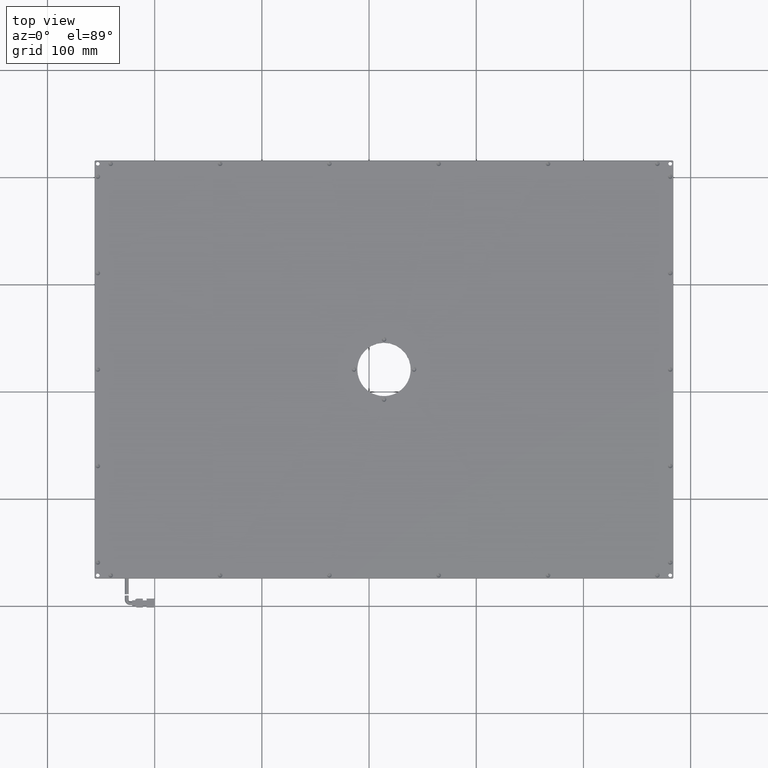
[diagram: clean part render]
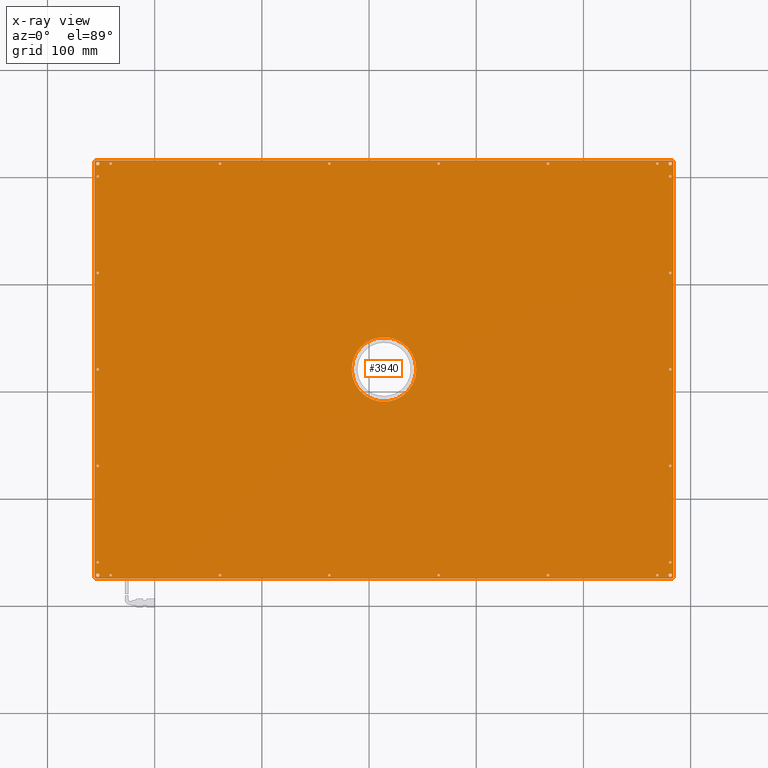
[diagram: x-ray — body ghosted, one internal face saturated and labeled with its STEP entity id]
A machine part, top view, then the same camera in x-ray: the body is ghosted and one INTERNAL B-rep face — a face not visible from any outside direction — is saturated and labeled: STEP entity #3940.
In plain terms, the highlighted planar face has unit normal (0, 0, -1).
Its self-contained STEP definition (entity closure, byte-faithful):
#18 = AXIS2_PLACEMENT_3D ( 'NONE', #21942, #38317, #15595 ) ;
#290 = VERTEX_POINT ( 'NONE', #40633 ) ;
#540 = CARTESIAN_POINT ( 'NONE',  ( 63.74095595126522100, -171.2877225866916100, 10.00000000001909900 ) ) ;
#588 = EDGE_CURVE ( 'NONE', #32391, #5445, #40836, .T. ) ;
#610 = CARTESIAN_POINT ( 'NONE',  ( -251.8590440487348300, -69.28772258669162900, 10.00000000001909900 ) ) ;
#620 = DIRECTION ( 'NONE',  ( 1.000000000000000000, 0.0000000000000000000, 0.0000000000000000000 ) ) ;
#628 = VERTEX_POINT ( 'NONE', #6270 ) ;
#805 = DIRECTION ( 'NONE',  ( 0.7071067811865279200, -0.7071067811865672200, 0.0000000000000000000 ) ) ;
#817 = VERTEX_POINT ( 'NONE', #4421 ) ;
#839 = VERTEX_POINT ( 'NONE', #24234 ) ;
#879 = ORIENTED_EDGE ( 'NONE', *, *, #20437, .T. ) ;
#1081 = VECTOR ( 'NONE', #9727, 1000.000000000000000 ) ;
#1099 = ORIENTED_EDGE ( 'NONE', *, *, #18707, .T. ) ;
#1100 = CARTESIAN_POINT ( 'NONE',  ( 280.9409559512652100, 110.7122774133084700, 10.00000000001909900 ) ) ;
#1103 = DIRECTION ( 'NONE',  ( 1.000000000000000000, 0.0000000000000000000, 0.0000000000000000000 ) ) ;
#1142 = VERTEX_POINT ( 'NONE', #9382 ) ;
#1165 = CARTESIAN_POINT ( 'NONE',  ( -255.0590440487348200, -174.2877225866916100, 10.00000000001909800 ) ) ;
#1214 = CARTESIAN_POINT ( 'NONE',  ( -37.05904404873480500, -171.2877225866916100, 10.00000000001909900 ) ) ;
#1239 = DIRECTION ( 'NONE',  ( -0.0000000000000000000, -0.0000000000000000000, 1.000000000000000000 ) ) ;
#1266 = DIRECTION ( 'NONE',  ( -0.0000000000000000000, -0.0000000000000000000, 1.000000000000000000 ) ) ;
#1319 = FACE_BOUND ( 'NONE', #26994, .T. ) ;
#1321 = EDGE_LOOP ( 'NONE', ( #26581, #9496 ) ) ;
#1345 = CARTESIAN_POINT ( 'NONE',  ( -241.0590440487347900, 212.7122774133083900, 10.00000000001909900 ) ) ;
#1489 = CARTESIAN_POINT ( 'NONE',  ( -16.15904404873480600, 20.71227741330838900, 10.00000000001909900 ) ) ;
#1541 = EDGE_CURVE ( 'NONE', #17600, #12301, #33846, .T. ) ;
#1566 = DIRECTION ( 'NONE',  ( -0.0000000000000000000, -0.0000000000000000000, 1.000000000000000000 ) ) ;
#1600 = EDGE_CURVE ( 'NONE', #22419, #4388, #12822, .T. ) ;
#1664 = DIRECTION ( 'NONE',  ( -0.0000000000000000000, -0.0000000000000000000, 1.000000000000000000 ) ) ;
#1872 = DIRECTION ( 'NONE',  ( 1.000000000000000000, 0.0000000000000000000, 0.0000000000000000000 ) ) ;
#1939 = ORIENTED_EDGE ( 'NONE', *, *, #39043, .T. ) ;
#1950 = ORIENTED_EDGE ( 'NONE', *, *, #41170, .T. ) ;
#1982 = EDGE_CURVE ( 'NONE', #36720, #7634, #12206, .T. ) ;
#1989 = VERTEX_POINT ( 'NONE', #35564 ) ;
#2104 = EDGE_CURVE ( 'NONE', #7270, #19749, #7040, .T. ) ;
#2121 = ORIENTED_EDGE ( 'NONE', *, *, #13042, .T. ) ;
#2285 = CARTESIAN_POINT ( 'NONE',  ( -253.0590440487347900, 200.7122774133083900, 10.00000000001909900 ) ) ;
#2662 = ORIENTED_EDGE ( 'NONE', *, *, #28942, .T. ) ;
#2678 = DIRECTION ( 'NONE',  ( 1.000000000000000000, 0.0000000000000000000, 0.0000000000000000000 ) ) ;
#2688 = DIRECTION ( 'NONE',  ( 1.000000000000000000, 0.0000000000000000000, 0.0000000000000000000 ) ) ;
#2746 = VERTEX_POINT ( 'NONE', #3485 ) ;
#2875 = ORIENTED_EDGE ( 'NONE', *, *, #35378, .T. ) ;
#3003 = CARTESIAN_POINT ( 'NONE',  ( -256.0590440487347900, 215.7122774133083900, 10.00000000001909900 ) ) ;
#3222 = CARTESIAN_POINT ( 'NONE',  ( 268.9409559512652100, -171.2877225866916100, 10.00000000001909900 ) ) ;
#3432 = AXIS2_PLACEMENT_3D ( 'NONE', #38050, #11886, #21952 ) ;
#3485 = CARTESIAN_POINT ( 'NONE',  ( 279.7409559512652200, 20.71227741330838900, 10.00000000001909900 ) ) ;
#3578 = ORIENTED_EDGE ( 'NONE', *, *, #35558, .T. ) ;
#3797 = CARTESIAN_POINT ( 'NONE',  ( 270.1409559512652000, -171.2877225866916100, 10.00000000001909900 ) ) ;
#3846 = FACE_BOUND ( 'NONE', #7346, .T. ) ;
#3871 = EDGE_LOOP ( 'NONE', ( #28871, #12886 ) ) ;
#3886 = VERTEX_POINT ( 'NONE', #35499 ) ;
#3940 = ADVANCED_FACE ( 'NONE', ( #13577, #25442, #33089, #3846, #24411, #34131, #32105, #31068, #23366, #5887, #38793, #37762, #23322, #5843, #13533, #25394, #16624, #4829, #18696, #7417, #1319, #29504, #23880, #12024, #25918, #14596, #33579, #37206 ), #9102, .T. ) ;
#4041 = DIRECTION ( 'NONE',  ( 1.000000000000000000, 0.0000000000000000000, 0.0000000000000000000 ) ) ;
#4061 = CARTESIAN_POINT ( 'NONE',  ( 279.7409559512652200, -69.28772258669162900, 10.00000000001909900 ) ) ;
#4289 = CIRCLE ( 'NONE', #15335, 1.199999999999978900 ) ;
#4335 = DIRECTION ( 'NONE',  ( 1.000000000000000000, 0.0000000000000000000, 0.0000000000000000000 ) ) ;
#4356 = EDGE_LOOP ( 'NONE', ( #36641, #1099 ) ) ;
#4365 = EDGE_LOOP ( 'NONE', ( #10145, #12637 ) ) ;
#4388 = VERTEX_POINT ( 'NONE', #12049 ) ;
#4421 = CARTESIAN_POINT ( 'NONE',  ( 168.1409559512651700, -171.2877225866916100, 10.00000000001909900 ) ) ;
#4458 = VERTEX_POINT ( 'NONE', #42524 ) ;
#4505 = CIRCLE ( 'NONE', #30262, 1.200000000000006600 ) ;
#4640 = CARTESIAN_POINT ( 'NONE',  ( -253.0590440487347900, 200.7122774133083900, 10.00000000001909900 ) ) ;
#4751 = CIRCLE ( 'NONE', #15708, 1.199999999999978900 ) ;
#4807 = CARTESIAN_POINT ( 'NONE',  ( -254.2590440487347800, -69.28772258669162900, 10.00000000001909900 ) ) ;
#4829 = FACE_BOUND ( 'NONE', #33808, .T. ) ;
#4917 = DIRECTION ( 'NONE',  ( -0.0000000000000000000, -0.0000000000000000000, 1.000000000000000000 ) ) ;
#5165 = ORIENTED_EDGE ( 'NONE', *, *, #11804, .T. ) ;
#5211 = AXIS2_PLACEMENT_3D ( 'NONE', #26097, #29403, #9711 ) ;
#5257 = LINE ( 'NONE', #3003, #18101 ) ;
#5366 = CARTESIAN_POINT ( 'NONE',  ( 280.9409559512652100, 200.7122774133083900, 10.00000000001909900 ) ) ;
#5370 = ORIENTED_EDGE ( 'NONE', *, *, #25277, .T. ) ;
#5412 = CARTESIAN_POINT ( 'NONE',  ( -253.0590440487347900, 110.7122774133084700, 10.00000000001909900 ) ) ;
#5416 = EDGE_LOOP ( 'NONE', ( #879, #26333 ) ) ;
#5445 = VERTEX_POINT ( 'NONE', #36925 ) ;
#5504 = EDGE_LOOP ( 'NONE', ( #42322, #10549 ) ) ;
#5534 = CIRCLE ( 'NONE', #26453, 1.199999999999978900 ) ;
#5659 = VECTOR ( 'NONE', #805, 1000.000000000000000 ) ;
#5753 = EDGE_CURVE ( 'NONE', #1989, #290, #4505, .T. ) ;
#5790 = CARTESIAN_POINT ( 'NONE',  ( -256.0590440487347900, 215.7122774133083900, 10.00000000001909900 ) ) ;
#5843 = FACE_BOUND ( 'NONE', #3871, .T. ) ;
#5887 = FACE_BOUND ( 'NONE', #30277, .T. ) ;
#5911 = CIRCLE ( 'NONE', #31300, 1.199999999999978900 ) ;
#6031 = CARTESIAN_POINT ( 'NONE',  ( 283.9409559512652100, -173.2877225866915600, 10.00000000001909800 ) ) ;
#6082 = DIRECTION ( 'NONE',  ( -1.000000000000000000, 0.0000000000000000000, -0.0000000000000000000 ) ) ;
#6220 = AXIS2_PLACEMENT_3D ( 'NONE', #26936, #39426, #36526 ) ;
#6270 = CARTESIAN_POINT ( 'NONE',  ( 165.7409559512651900, -171.2877225866916100, 10.00000000001909900 ) ) ;
#6332 = DIRECTION ( 'NONE',  ( 1.000000000000000000, 0.0000000000000000000, 0.0000000000000000000 ) ) ;
#6483 = ORIENTED_EDGE ( 'NONE', *, *, #6957, .T. ) ;
#6554 = DIRECTION ( 'NONE',  ( -0.0000000000000000000, -0.0000000000000000000, 1.000000000000000000 ) ) ;
#6670 = ORIENTED_EDGE ( 'NONE', *, *, #34593, .T. ) ;
#6686 = CIRCLE ( 'NONE', #41381, 1.199999999999978900 ) ;
#6691 = EDGE_CURVE ( 'NONE', #1142, #39795, #36189, .T. ) ;
#6756 = EDGE_CURVE ( 'NONE', #7318, #30011, #37212, .T. ) ;
#6957 = EDGE_CURVE ( 'NONE', #4458, #33718, #42366, .T. ) ;
#7003 = EDGE_CURVE ( 'NONE', #8745, #41603, #26389, .T. ) ;
#7040 = CIRCLE ( 'NONE', #16506, 1.749999999999973800 ) ;
#7129 = EDGE_CURVE ( 'NONE', #22958, #37473, #9913, .T. ) ;
#7173 = ORIENTED_EDGE ( 'NONE', *, *, #42270, .T. ) ;
#7191 = EDGE_CURVE ( 'NONE', #19749, #7270, #40256, .T. ) ;
#7254 = EDGE_CURVE ( 'NONE', #3886, #9508, #37643, .T. ) ;
#7261 = DIRECTION ( 'NONE',  ( -0.7071067811865474600, 0.7071067811865474600, 0.0000000000000000000 ) ) ;
#7270 = VERTEX_POINT ( 'NONE', #11379 ) ;
#7318 = VERTEX_POINT ( 'NONE', #14542 ) ;
#7346 = EDGE_LOOP ( 'NONE', ( #24371, #39318 ) ) ;
#7417 = FACE_BOUND ( 'NONE', #14673, .T. ) ;
#7450 = CARTESIAN_POINT ( 'NONE',  ( 282.1409559512652000, -159.2877225866916100, 10.00000000001909900 ) ) ;
#7465 = VECTOR ( 'NONE', #7261, 1000.000000000000100 ) ;
#7469 = ORIENTED_EDGE ( 'NONE', *, *, #23014, .T. ) ;
#7487 = AXIS2_PLACEMENT_3D ( 'NONE', #36564, #26689, #13455 ) ;
#7548 = DIRECTION ( 'NONE',  ( -0.0000000000000000000, -0.0000000000000000000, 1.000000000000000000 ) ) ;
#7634 = VERTEX_POINT ( 'NONE', #10025 ) ;
#7725 = VERTEX_POINT ( 'NONE', #40070 ) ;
#7761 = AXIS2_PLACEMENT_3D ( 'NONE', #12995, #9541, #32124 ) ;
#7769 = AXIS2_PLACEMENT_3D ( 'NONE', #31036, #1664, #18092 ) ;
#7814 = VERTEX_POINT ( 'NONE', #1489 ) ;
#8043 = CARTESIAN_POINT ( 'NONE',  ( 66.14095595126518400, 212.7122774133083900, 10.00000000001909900 ) ) ;
#8062 = CARTESIAN_POINT ( 'NONE',  ( -254.2590440487347800, 200.7122774133083900, 10.00000000001909900 ) ) ;
#8100 = VECTOR ( 'NONE', #28651, 1000.000000000000000 ) ;
#8103 = VERTEX_POINT ( 'NONE', #40204 ) ;
#8275 = EDGE_CURVE ( 'NONE', #14599, #40572, #24630, .T. ) ;
#8312 = ORIENTED_EDGE ( 'NONE', *, *, #15338, .T. ) ;
#8322 = DIRECTION ( 'NONE',  ( -0.0000000000000000000, -0.0000000000000000000, 1.000000000000000000 ) ) ;
#8409 = DIRECTION ( 'NONE',  ( -0.0000000000000000000, -0.0000000000000000000, 1.000000000000000000 ) ) ;
#8460 = CARTESIAN_POINT ( 'NONE',  ( -241.0590440487347900, 212.7122774133083900, 10.00000000001909900 ) ) ;
#8487 = CARTESIAN_POINT ( 'NONE',  ( 282.6909559512652700, 212.7122774133083900, 10.00000000001909900 ) ) ;
#8647 = CIRCLE ( 'NONE', #3432, 1.199999999999978900 ) ;
#8705 = DIRECTION ( 'NONE',  ( -1.000000000000000000, 0.0000000000000000000, 0.0000000000000000000 ) ) ;
#8714 = EDGE_LOOP ( 'NONE', ( #31782, #7469, #40925, #2875, #23932, #20289, #28631, #34690 ) ) ;
#8745 = VERTEX_POINT ( 'NONE', #30659 ) ;
#8804 = DIRECTION ( 'NONE',  ( -0.0000000000000000000, -0.0000000000000000000, 1.000000000000000000 ) ) ;
#8814 = AXIS2_PLACEMENT_3D ( 'NONE', #29112, #32382, #42327 ) ;
#8947 = EDGE_CURVE ( 'NONE', #2746, #26956, #39869, .T. ) ;
#9102 = PLANE ( 'NONE',  #21302 ) ;
#9382 = CARTESIAN_POINT ( 'NONE',  ( -255.0590440487347600, -174.2877225866916100, 10.00000000001909800 ) ) ;
#9418 = CIRCLE ( 'NONE', #8814, 1.199999999999978900 ) ;
#9496 = ORIENTED_EDGE ( 'NONE', *, *, #10128, .T. ) ;
#9508 = VERTEX_POINT ( 'NONE', #8062 ) ;
#9530 = CIRCLE ( 'NONE', #12535, 1.199999999999978900 ) ;
#9541 = DIRECTION ( 'NONE',  ( -0.0000000000000000000, -0.0000000000000000000, 1.000000000000000000 ) ) ;
#9611 = VERTEX_POINT ( 'NONE', #15234 ) ;
#9711 = DIRECTION ( 'NONE',  ( 1.000000000000000000, 0.0000000000000000000, 0.0000000000000000000 ) ) ;
#9727 = DIRECTION ( 'NONE',  ( -0.0000000000000000000, -1.000000000000000000, -0.0000000000000000000 ) ) ;
#9913 = CIRCLE ( 'NONE', #16248, 1.199999999999978900 ) ;
#10014 = VERTEX_POINT ( 'NONE', #7450 ) ;
#10025 = CARTESIAN_POINT ( 'NONE',  ( 279.1909559512652100, -171.2877225866916100, 10.00000000001909900 ) ) ;
#10031 = LINE ( 'NONE', #27038, #17246 ) ;
#10128 = EDGE_CURVE ( 'NONE', #38657, #25130, #4289, .T. ) ;
#10145 = ORIENTED_EDGE ( 'NONE', *, *, #6756, .T. ) ;
#10328 = EDGE_CURVE ( 'NONE', #39795, #36246, #5257, .T. ) ;
#10358 = DIRECTION ( 'NONE',  ( 1.000000000000000000, 0.0000000000000000000, 0.0000000000000000000 ) ) ;
#10463 = AXIS2_PLACEMENT_3D ( 'NONE', #32554, #15790, #38770 ) ;
#10484 = CARTESIAN_POINT ( 'NONE',  ( 166.9409559512651800, -171.2877225866916100, 10.00000000001909900 ) ) ;
#10496 = EDGE_LOOP ( 'NONE', ( #26048, #21576 ) ) ;
#10527 = VERTEX_POINT ( 'NONE', #4807 ) ;
#10549 = ORIENTED_EDGE ( 'NONE', *, *, #1541, .T. ) ;
#10765 = AXIS2_PLACEMENT_3D ( 'NONE', #18652, #18800, #18228 ) ;
#10777 = CIRCLE ( 'NONE', #28868, 1.199999999999978900 ) ;
#10787 = EDGE_CURVE ( 'NONE', #33718, #4458, #19008, .T. ) ;
#10790 = CARTESIAN_POINT ( 'NONE',  ( 280.9409559512652100, 200.7122774133083900, 10.00000000001909900 ) ) ;
#10830 = ORIENTED_EDGE ( 'NONE', *, *, #19349, .T. ) ;
#10835 = CARTESIAN_POINT ( 'NONE',  ( 279.7409559512652200, 110.7122774133084700, 10.00000000001909900 ) ) ;
#10859 = DIRECTION ( 'NONE',  ( -0.0000000000000000000, -0.0000000000000000000, 1.000000000000000000 ) ) ;
#10924 = DIRECTION ( 'NONE',  ( -0.0000000000000000000, -0.0000000000000000000, 1.000000000000000000 ) ) ;
#11091 = DIRECTION ( 'NONE',  ( 1.000000000000000000, 0.0000000000000000000, 0.0000000000000000000 ) ) ;
#11201 = CIRCLE ( 'NONE', #23805, 1.199999999999978900 ) ;
#11324 = DIRECTION ( 'NONE',  ( -0.0000000000000000000, -0.0000000000000000000, 1.000000000000000000 ) ) ;
#11353 = VERTEX_POINT ( 'NONE', #39576 ) ;
#11379 = CARTESIAN_POINT ( 'NONE',  ( -254.8090440487347900, 212.7122774133083900, 10.00000000001909900 ) ) ;
#11405 = CARTESIAN_POINT ( 'NONE',  ( 44.04095595126522500, 20.71227741330839200, 10.00000000001909900 ) ) ;
#11412 = DIRECTION ( 'NONE',  ( 1.000000000000000000, 0.0000000000000000000, 0.0000000000000000000 ) ) ;
#11420 = CARTESIAN_POINT ( 'NONE',  ( -37.05904404873480500, -171.2877225866916100, 10.00000000001909900 ) ) ;
#11540 = EDGE_CURVE ( 'NONE', #290, #1989, #32532, .T. ) ;
#11664 = CARTESIAN_POINT ( 'NONE',  ( -239.8590440487348000, 212.7122774133083900, 10.00000000001909900 ) ) ;
#11719 = CARTESIAN_POINT ( 'NONE',  ( 166.9409559512651800, 212.7122774133083900, 10.00000000001909900 ) ) ;
#11804 = EDGE_CURVE ( 'NONE', #28788, #7725, #4751, .T. ) ;
#11861 = LINE ( 'NONE', #11933, #35971 ) ;
#11876 = AXIS2_PLACEMENT_3D ( 'NONE', #13390, #36643, #36339 ) ;
#11886 = DIRECTION ( 'NONE',  ( -0.0000000000000000000, -0.0000000000000000000, 1.000000000000000000 ) ) ;
#11933 = CARTESIAN_POINT ( 'NONE',  ( -256.0590440487347900, 214.7122774133085000, 10.00000000001909800 ) ) ;
#11958 = CARTESIAN_POINT ( 'NONE',  ( 280.9409559512652100, 20.71227741330838900, 10.00000000001909900 ) ) ;
#12024 = FACE_BOUND ( 'NONE', #25372, .T. ) ;
#12044 = AXIS2_PLACEMENT_3D ( 'NONE', #10790, #19377, #620 ) ;
#12049 = CARTESIAN_POINT ( 'NONE',  ( 282.1409559512652000, 110.7122774133084700, 10.00000000001909900 ) ) ;
#12206 = CIRCLE ( 'NONE', #10463, 1.750000000000029300 ) ;
#12222 = ORIENTED_EDGE ( 'NONE', *, *, #40261, .T. ) ;
#12234 = EDGE_CURVE ( 'NONE', #10527, #12528, #38560, .T. ) ;
#12256 = EDGE_CURVE ( 'NONE', #7634, #36720, #32349, .T. ) ;
#12301 = VERTEX_POINT ( 'NONE', #8487 ) ;
#12528 = VERTEX_POINT ( 'NONE', #610 ) ;
#12535 = AXIS2_PLACEMENT_3D ( 'NONE', #27413, #7548, #37131 ) ;
#12593 = ORIENTED_EDGE ( 'NONE', *, *, #2104, .T. ) ;
#12637 = ORIENTED_EDGE ( 'NONE', *, *, #38116, .T. ) ;
#12822 = CIRCLE ( 'NONE', #22595, 1.199999999999978900 ) ;
#12837 = AXIS2_PLACEMENT_3D ( 'NONE', #40571, #1266, #30783 ) ;
#12886 = ORIENTED_EDGE ( 'NONE', *, *, #7129, .T. ) ;
#12995 = CARTESIAN_POINT ( 'NONE',  ( -253.0590440487347900, -171.2877225866916100, 10.00000000001909900 ) ) ;
#13042 = EDGE_CURVE ( 'NONE', #4388, #22419, #27128, .T. ) ;
#13109 = DIRECTION ( 'NONE',  ( -0.0000000000000000000, -0.0000000000000000000, 1.000000000000000000 ) ) ;
#13287 = EDGE_LOOP ( 'NONE', ( #14036, #3578 ) ) ;
#13390 = CARTESIAN_POINT ( 'NONE',  ( -253.0590440487347900, 212.7122774133083900, 10.00000000001909900 ) ) ;
#13455 = DIRECTION ( 'NONE',  ( 1.000000000000000000, 0.0000000000000000000, 0.0000000000000000000 ) ) ;
#13533 = FACE_BOUND ( 'NONE', #10496, .T. ) ;
#13549 = VERTEX_POINT ( 'NONE', #25631 ) ;
#13577 = FACE_BOUND ( 'NONE', #25868, .T. ) ;
#13659 = EDGE_LOOP ( 'NONE', ( #5370, #28132 ) ) ;
#13665 = DIRECTION ( 'NONE',  ( -0.0000000000000000000, -0.0000000000000000000, 1.000000000000000000 ) ) ;
#14036 = ORIENTED_EDGE ( 'NONE', *, *, #39284, .T. ) ;
#14296 = CARTESIAN_POINT ( 'NONE',  ( -254.2590440487347800, 110.7122774133084700, 10.00000000001909900 ) ) ;
#14352 = DIRECTION ( 'NONE',  ( 1.000000000000000000, 0.0000000000000000000, 0.0000000000000000000 ) ) ;
#14542 = CARTESIAN_POINT ( 'NONE',  ( -35.85904404873480200, -171.2877225866916100, 10.00000000001909900 ) ) ;
#14569 = DIRECTION ( 'NONE',  ( 1.000000000000000000, 0.0000000000000000000, 0.0000000000000000000 ) ) ;
#14596 = FACE_BOUND ( 'NONE', #22891, .T. ) ;
#14599 = VERTEX_POINT ( 'NONE', #11664 ) ;
#14625 = DIRECTION ( 'NONE',  ( 1.000000000000000000, 0.0000000000000000000, 0.0000000000000000000 ) ) ;
#14636 = DIRECTION ( 'NONE',  ( -0.0000000000000000000, -0.0000000000000000000, 1.000000000000000000 ) ) ;
#14650 = EDGE_LOOP ( 'NONE', ( #2121, #42017 ) ) ;
#14673 = EDGE_LOOP ( 'NONE', ( #12222, #32832 ) ) ;
#14817 = AXIS2_PLACEMENT_3D ( 'NONE', #16086, #42427, #6332 ) ;
#14965 = DIRECTION ( 'NONE',  ( -0.0000000000000000000, -0.0000000000000000000, 1.000000000000000000 ) ) ;
#15016 = CARTESIAN_POINT ( 'NONE',  ( -254.8090440487347900, -171.2877225866916100, 10.00000000001909900 ) ) ;
#15021 = DIRECTION ( 'NONE',  ( -0.0000000000000000000, -0.0000000000000000000, 1.000000000000000000 ) ) ;
#15043 = CARTESIAN_POINT ( 'NONE',  ( -254.2590440487347800, -159.2877225866916100, 10.00000000001909900 ) ) ;
#15051 = CIRCLE ( 'NONE', #18, 1.199999999999978900 ) ;
#15136 = EDGE_CURVE ( 'NONE', #8103, #25168, #20028, .T. ) ;
#15154 = LINE ( 'NONE', #17502, #32638 ) ;
#15234 = CARTESIAN_POINT ( 'NONE',  ( -255.0590440487349000, 215.7122774133083900, 10.00000000001909800 ) ) ;
#15291 = ORIENTED_EDGE ( 'NONE', *, *, #22073, .T. ) ;
#15335 = AXIS2_PLACEMENT_3D ( 'NONE', #5412, #24696, #34543 ) ;
#15338 = EDGE_CURVE ( 'NONE', #7725, #28788, #10777, .T. ) ;
#15559 = CARTESIAN_POINT ( 'NONE',  ( -253.0590440487347900, -159.2877225866916100, 10.00000000001909900 ) ) ;
#15595 = DIRECTION ( 'NONE',  ( 1.000000000000000000, 0.0000000000000000000, 0.0000000000000000000 ) ) ;
#15693 = VERTEX_POINT ( 'NONE', #17431 ) ;
#15708 = AXIS2_PLACEMENT_3D ( 'NONE', #19437, #19138, #2688 ) ;
#15790 = DIRECTION ( 'NONE',  ( -0.0000000000000000000, -0.0000000000000000000, 1.000000000000000000 ) ) ;
#15819 = EDGE_CURVE ( 'NONE', #9611, #839, #26618, .T. ) ;
#16086 = CARTESIAN_POINT ( 'NONE',  ( -253.0590440487347900, -69.28772258669162900, 10.00000000001909900 ) ) ;
#16098 = ORIENTED_EDGE ( 'NONE', *, *, #7191, .T. ) ;
#16248 = AXIS2_PLACEMENT_3D ( 'NONE', #36196, #27073, #10358 ) ;
#16341 = CARTESIAN_POINT ( 'NONE',  ( -256.0590440487347900, -173.2877225866916100, 10.00000000001909800 ) ) ;
#16404 = DIRECTION ( 'NONE',  ( 1.000000000000000000, 0.0000000000000000000, 0.0000000000000000000 ) ) ;
#16406 = CARTESIAN_POINT ( 'NONE',  ( -251.3090440487348200, 212.7122774133083900, 10.00000000001909900 ) ) ;
#16506 = AXIS2_PLACEMENT_3D ( 'NONE', #36413, #19780, #39749 ) ;
#16512 = AXIS2_PLACEMENT_3D ( 'NONE', #11420, #15021, #24351 ) ;
#16624 = FACE_BOUND ( 'NONE', #13287, .T. ) ;
#16800 = DIRECTION ( 'NONE',  ( 1.000000000000000000, 0.0000000000000000000, 0.0000000000000000000 ) ) ;
#16904 = ORIENTED_EDGE ( 'NONE', *, *, #31303, .T. ) ;
#16941 = DIRECTION ( 'NONE',  ( -0.0000000000000000000, -0.0000000000000000000, 1.000000000000000000 ) ) ;
#17246 = VECTOR ( 'NONE', #40086, 1000.000000000000100 ) ;
#17264 = CIRCLE ( 'NONE', #12837, 1.199999999999978900 ) ;
#17299 = CARTESIAN_POINT ( 'NONE',  ( 282.1409559512652000, -69.28772258669162900, 10.00000000001909900 ) ) ;
#17327 = AXIS2_PLACEMENT_3D ( 'NONE', #21329, #37695, #11412 ) ;
#17348 = CARTESIAN_POINT ( 'NONE',  ( 282.9409559512652100, -174.2877225866916100, 10.00000000001909800 ) ) ;
#17431 = CARTESIAN_POINT ( 'NONE',  ( -254.2590440487347800, 20.71227741330838900, 10.00000000001909900 ) ) ;
#17483 = CARTESIAN_POINT ( 'NONE',  ( -139.0590440487348200, 212.7122774133083900, 10.00000000001909900 ) ) ;
#17502 = CARTESIAN_POINT ( 'NONE',  ( -256.0590440487347900, -174.2877225866916100, 10.00000000001909900 ) ) ;
#17600 = VERTEX_POINT ( 'NONE', #18407 ) ;
#17640 = CARTESIAN_POINT ( 'NONE',  ( 64.94095595126519500, -171.2877225866916100, 10.00000000001909900 ) ) ;
#17700 = ORIENTED_EDGE ( 'NONE', *, *, #8275, .T. ) ;
#17820 = ORIENTED_EDGE ( 'NONE', *, *, #7003, .T. ) ;
#17901 = CARTESIAN_POINT ( 'NONE',  ( -251.8590440487348300, -159.2877225866916100, 10.00000000001909900 ) ) ;
#18092 = DIRECTION ( 'NONE',  ( 1.000000000000000000, 0.0000000000000000000, 0.0000000000000000000 ) ) ;
#18101 = VECTOR ( 'NONE', #29819, 1000.000000000000000 ) ;
#18132 = CARTESIAN_POINT ( 'NONE',  ( -253.0590440487347900, -159.2877225866916100, 10.00000000001909900 ) ) ;
#18186 = CARTESIAN_POINT ( 'NONE',  ( 279.7409559512652200, -159.2877225866916100, 10.00000000001909900 ) ) ;
#18228 = DIRECTION ( 'NONE',  ( 1.000000000000000000, 0.0000000000000000000, 0.0000000000000000000 ) ) ;
#18240 = ORIENTED_EDGE ( 'NONE', *, *, #12256, .T. ) ;
#18407 = CARTESIAN_POINT ( 'NONE',  ( 279.1909559512652100, 212.7122774133083900, 10.00000000001909900 ) ) ;
#18458 = CARTESIAN_POINT ( 'NONE',  ( 13.94095595126520900, 20.71227741330838900, 10.00000000001909900 ) ) ;
#18461 = ORIENTED_EDGE ( 'NONE', *, *, #10787, .T. ) ;
#18561 = CARTESIAN_POINT ( 'NONE',  ( 280.9409559512652100, -159.2877225866916100, 10.00000000001909900 ) ) ;
#18597 = VERTEX_POINT ( 'NONE', #15043 ) ;
#18652 = CARTESIAN_POINT ( 'NONE',  ( -253.0590440487347900, 20.71227741330838900, 10.00000000001909900 ) ) ;
#18664 = VERTEX_POINT ( 'NONE', #17901 ) ;
#18696 = FACE_BOUND ( 'NONE', #14650, .T. ) ;
#18707 = EDGE_CURVE ( 'NONE', #26683, #7814, #18891, .T. ) ;
#18800 = DIRECTION ( 'NONE',  ( -0.0000000000000000000, -0.0000000000000000000, 1.000000000000000000 ) ) ;
#18864 = AXIS2_PLACEMENT_3D ( 'NONE', #17483, #24117, #27440 ) ;
#18891 = CIRCLE ( 'NONE', #19407, 30.10000000000001600 ) ;
#18978 = EDGE_LOOP ( 'NONE', ( #33649, #1950 ) ) ;
#18997 = DIRECTION ( 'NONE',  ( -1.000000000000000000, 0.0000000000000000000, 0.0000000000000000000 ) ) ;
#19008 = CIRCLE ( 'NONE', #12044, 1.199999999999978900 ) ;
#19028 = EDGE_CURVE ( 'NONE', #5445, #32391, #29623, .T. ) ;
#19138 = DIRECTION ( 'NONE',  ( -0.0000000000000000000, -0.0000000000000000000, 1.000000000000000000 ) ) ;
#19207 = VERTEX_POINT ( 'NONE', #30398 ) ;
#19219 = EDGE_CURVE ( 'NONE', #10014, #26115, #9530, .T. ) ;
#19302 = AXIS2_PLACEMENT_3D ( 'NONE', #3222, #13109, #16404 ) ;
#19333 = DIRECTION ( 'NONE',  ( 1.000000000000000000, 0.0000000000000000000, 0.0000000000000000000 ) ) ;
#19349 = EDGE_CURVE ( 'NONE', #21715, #11353, #5911, .T. ) ;
#19377 = DIRECTION ( 'NONE',  ( -0.0000000000000000000, -0.0000000000000000000, 1.000000000000000000 ) ) ;
#19407 = AXIS2_PLACEMENT_3D ( 'NONE', #27726, #35342, #18997 ) ;
#19437 = CARTESIAN_POINT ( 'NONE',  ( 268.9409559512652100, 212.7122774133083900, 10.00000000001909900 ) ) ;
#19742 = DIRECTION ( 'NONE',  ( -0.0000000000000000000, -0.0000000000000000000, 1.000000000000000000 ) ) ;
#19749 = VERTEX_POINT ( 'NONE', #16406 ) ;
#19780 = DIRECTION ( 'NONE',  ( -0.0000000000000000000, -0.0000000000000000000, 1.000000000000000000 ) ) ;
#20028 = CIRCLE ( 'NONE', #23040, 1.199999999999978900 ) ;
#20289 = ORIENTED_EDGE ( 'NONE', *, *, #28255, .T. ) ;
#20437 = EDGE_CURVE ( 'NONE', #13549, #33412, #40396, .T. ) ;
#20479 = EDGE_CURVE ( 'NONE', #25884, #1142, #15154, .T. ) ;
#20816 = DIRECTION ( 'NONE',  ( -0.0000000000000000000, -0.0000000000000000000, 1.000000000000000000 ) ) ;
#21009 = VERTEX_POINT ( 'NONE', #17299 ) ;
#21129 = VERTEX_POINT ( 'NONE', #15016 ) ;
#21177 = AXIS2_PLACEMENT_3D ( 'NONE', #27050, #1239, #36617 ) ;
#21219 = DIRECTION ( 'NONE',  ( 1.000000000000000000, 0.0000000000000000000, 0.0000000000000000000 ) ) ;
#21302 = AXIS2_PLACEMENT_3D ( 'NONE', #5790, #25777, #6082 ) ;
#21329 = CARTESIAN_POINT ( 'NONE',  ( -37.05904404873480500, 212.7122774133083900, 10.00000000001909900 ) ) ;
#21576 = ORIENTED_EDGE ( 'NONE', *, *, #11540, .T. ) ;
#21658 = DIRECTION ( 'NONE',  ( -0.0000000000000000000, -0.0000000000000000000, 1.000000000000000000 ) ) ;
#21703 = AXIS2_PLACEMENT_3D ( 'NONE', #36254, #42368, #32679 ) ;
#21715 = VERTEX_POINT ( 'NONE', #23548 ) ;
#21842 = CARTESIAN_POINT ( 'NONE',  ( -242.2590440487347800, 212.7122774133083900, 10.00000000001909900 ) ) ;
#21878 = EDGE_LOOP ( 'NONE', ( #17700, #7173 ) ) ;
#21887 = CARTESIAN_POINT ( 'NONE',  ( 282.6909559512652700, -171.2877225866916100, 10.00000000001909900 ) ) ;
#21942 = CARTESIAN_POINT ( 'NONE',  ( 166.9409559512651800, 212.7122774133083900, 10.00000000001909900 ) ) ;
#21952 = DIRECTION ( 'NONE',  ( 1.000000000000000000, 0.0000000000000000000, 0.0000000000000000000 ) ) ;
#21982 = CARTESIAN_POINT ( 'NONE',  ( -38.25904404873481500, -171.2877225866916100, 10.00000000001909900 ) ) ;
#22066 = AXIS2_PLACEMENT_3D ( 'NONE', #18132, #1566, #14569 ) ;
#22073 = EDGE_CURVE ( 'NONE', #21129, #33314, #31328, .T. ) ;
#22086 = LINE ( 'NONE', #28884, #1081 ) ;
#22149 = DIRECTION ( 'NONE',  ( -0.0000000000000000000, -0.0000000000000000000, 1.000000000000000000 ) ) ;
#22356 = CARTESIAN_POINT ( 'NONE',  ( 280.9409559512652100, 20.71227741330838900, 10.00000000001909900 ) ) ;
#22370 = ORIENTED_EDGE ( 'NONE', *, *, #588, .T. ) ;
#22419 = VERTEX_POINT ( 'NONE', #10835 ) ;
#22582 = ORIENTED_EDGE ( 'NONE', *, *, #19028, .T. ) ;
#22595 = AXIS2_PLACEMENT_3D ( 'NONE', #1100, #30180, #4335 ) ;
#22802 = VERTEX_POINT ( 'NONE', #32897 ) ;
#22826 = CARTESIAN_POINT ( 'NONE',  ( 282.1409559512652000, 20.71227741330838900, 10.00000000001909900 ) ) ;
#22891 = EDGE_LOOP ( 'NONE', ( #16098, #12593 ) ) ;
#22958 = VERTEX_POINT ( 'NONE', #41420 ) ;
#23014 = EDGE_CURVE ( 'NONE', #36246, #9611, #11861, .T. ) ;
#23040 = AXIS2_PLACEMENT_3D ( 'NONE', #31703, #21658, #21219 ) ;
#23322 = FACE_BOUND ( 'NONE', #21878, .T. ) ;
#23366 = FACE_BOUND ( 'NONE', #18978, .T. ) ;
#23548 = CARTESIAN_POINT ( 'NONE',  ( -140.2590440487347800, -171.2877225866916100, 10.00000000001909900 ) ) ;
#23635 = EDGE_CURVE ( 'NONE', #25355, #21009, #8647, .T. ) ;
#23805 = AXIS2_PLACEMENT_3D ( 'NONE', #8460, #8322, #31435 ) ;
#23880 = FACE_BOUND ( 'NONE', #33139, .T. ) ;
#23932 = ORIENTED_EDGE ( 'NONE', *, *, #30231, .T. ) ;
#24074 = AXIS2_PLACEMENT_3D ( 'NONE', #32654, #32509, #39427 ) ;
#24117 = DIRECTION ( 'NONE',  ( -0.0000000000000000000, -0.0000000000000000000, 1.000000000000000000 ) ) ;
#24136 = DIRECTION ( 'NONE',  ( -1.000000000000000000, 0.0000000000000000000, -0.0000000000000000000 ) ) ;
#24234 = CARTESIAN_POINT ( 'NONE',  ( 282.9409559512652100, 215.7122774133083900, 10.00000000001909800 ) ) ;
#24315 = CIRCLE ( 'NONE', #39945, 1.750000000000029300 ) ;
#24351 = DIRECTION ( 'NONE',  ( 1.000000000000000000, 0.0000000000000000000, 0.0000000000000000000 ) ) ;
#24371 = ORIENTED_EDGE ( 'NONE', *, *, #19219, .T. ) ;
#24411 = FACE_BOUND ( 'NONE', #34603, .T. ) ;
#24534 = AXIS2_PLACEMENT_3D ( 'NONE', #5366, #25212, #42043 ) ;
#24630 = CIRCLE ( 'NONE', #35034, 1.199999999999978900 ) ;
#24696 = DIRECTION ( 'NONE',  ( -0.0000000000000000000, -0.0000000000000000000, 1.000000000000000000 ) ) ;
#24769 = EDGE_CURVE ( 'NONE', #33314, #21129, #28465, .T. ) ;
#24811 = DIRECTION ( 'NONE',  ( -0.0000000000000000000, -0.0000000000000000000, 1.000000000000000000 ) ) ;
#24829 = DIRECTION ( 'NONE',  ( 1.000000000000000000, 0.0000000000000000000, 0.0000000000000000000 ) ) ;
#25129 = ORIENTED_EDGE ( 'NONE', *, *, #1982, .T. ) ;
#25130 = VERTEX_POINT ( 'NONE', #35035 ) ;
#25168 = VERTEX_POINT ( 'NONE', #32062 ) ;
#25212 = DIRECTION ( 'NONE',  ( -0.0000000000000000000, -0.0000000000000000000, 1.000000000000000000 ) ) ;
#25230 = DIRECTION ( 'NONE',  ( 1.000000000000000000, 0.0000000000000000000, 0.0000000000000000000 ) ) ;
#25233 = CARTESIAN_POINT ( 'NONE',  ( -256.0590440487347900, 214.7122774133084400, 10.00000000001909800 ) ) ;
#25277 = EDGE_CURVE ( 'NONE', #12528, #10527, #28333, .T. ) ;
#25328 = DIRECTION ( 'NONE',  ( -0.0000000000000000000, -0.0000000000000000000, 1.000000000000000000 ) ) ;
#25355 = VERTEX_POINT ( 'NONE', #4061 ) ;
#25372 = EDGE_LOOP ( 'NONE', ( #36857, #15291 ) ) ;
#25378 = AXIS2_PLACEMENT_3D ( 'NONE', #40983, #4917, #27917 ) ;
#25394 = FACE_BOUND ( 'NONE', #41481, .T. ) ;
#25442 = FACE_BOUND ( 'NONE', #5416, .T. ) ;
#25452 = DIRECTION ( 'NONE',  ( 1.000000000000000000, 0.0000000000000000000, 0.0000000000000000000 ) ) ;
#25541 = VERTEX_POINT ( 'NONE', #6031 ) ;
#25561 = CARTESIAN_POINT ( 'NONE',  ( -137.8590440487348300, 212.7122774133083900, 10.00000000001909900 ) ) ;
#25631 = CARTESIAN_POINT ( 'NONE',  ( 66.14095595126518400, -171.2877225866916100, 10.00000000001909900 ) ) ;
#25777 = DIRECTION ( 'NONE',  ( 0.0000000000000000000, 0.0000000000000000000, -1.000000000000000000 ) ) ;
#25860 = DIRECTION ( 'NONE',  ( -0.0000000000000000000, -0.0000000000000000000, 1.000000000000000000 ) ) ;
#25868 = EDGE_LOOP ( 'NONE', ( #41731, #17820 ) ) ;
#25884 = VERTEX_POINT ( 'NONE', #17348 ) ;
#25918 = FACE_BOUND ( 'NONE', #29488, .T. ) ;
#26048 = ORIENTED_EDGE ( 'NONE', *, *, #5753, .T. ) ;
#26082 = EDGE_CURVE ( 'NONE', #33412, #13549, #5534, .T. ) ;
#26097 = CARTESIAN_POINT ( 'NONE',  ( 280.9409559512652100, -69.28772258669162900, 10.00000000001909900 ) ) ;
#26115 = VERTEX_POINT ( 'NONE', #18186 ) ;
#26333 = ORIENTED_EDGE ( 'NONE', *, *, #26082, .T. ) ;
#26389 = CIRCLE ( 'NONE', #19302, 1.199999999999978900 ) ;
#26453 = AXIS2_PLACEMENT_3D ( 'NONE', #41662, #28567, #24829 ) ;
#26581 = ORIENTED_EDGE ( 'NONE', *, *, #40963, .T. ) ;
#26610 = DIRECTION ( 'NONE',  ( 1.000000000000000000, 0.0000000000000000000, 0.0000000000000000000 ) ) ;
#26618 = LINE ( 'NONE', #34914, #8100 ) ;
#26647 = EDGE_CURVE ( 'NONE', #18664, #18597, #29667, .T. ) ;
#26683 = VERTEX_POINT ( 'NONE', #11405 ) ;
#26689 = DIRECTION ( 'NONE',  ( -0.0000000000000000000, -0.0000000000000000000, 1.000000000000000000 ) ) ;
#26936 = CARTESIAN_POINT ( 'NONE',  ( -253.0590440487347900, -171.2877225866916100, 10.00000000001909900 ) ) ;
#26956 = VERTEX_POINT ( 'NONE', #22826 ) ;
#26994 = EDGE_LOOP ( 'NONE', ( #36114, #39028 ) ) ;
#27038 = CARTESIAN_POINT ( 'NONE',  ( 283.9409559512652100, -173.2877225866916100, 10.00000000001909800 ) ) ;
#27050 = CARTESIAN_POINT ( 'NONE',  ( 280.9409559512652100, 212.7122774133083900, 10.00000000001909900 ) ) ;
#27073 = DIRECTION ( 'NONE',  ( -0.0000000000000000000, -0.0000000000000000000, 1.000000000000000000 ) ) ;
#27128 = CIRCLE ( 'NONE', #24074, 1.199999999999978900 ) ;
#27413 = CARTESIAN_POINT ( 'NONE',  ( 280.9409559512652100, -159.2877225866916100, 10.00000000001909900 ) ) ;
#27418 = CIRCLE ( 'NONE', #37419, 1.199999999999978900 ) ;
#27440 = DIRECTION ( 'NONE',  ( 1.000000000000000000, 0.0000000000000000000, 0.0000000000000000000 ) ) ;
#27557 = EDGE_CURVE ( 'NONE', #41603, #8745, #9418, .T. ) ;
#27726 = CARTESIAN_POINT ( 'NONE',  ( 13.94095595126520900, 20.71227741330838900, 10.00000000001909900 ) ) ;
#27786 = DIRECTION ( 'NONE',  ( 0.7071067811865474600, 0.7071067811865474600, 0.0000000000000000000 ) ) ;
#27917 = DIRECTION ( 'NONE',  ( 1.000000000000000000, 0.0000000000000000000, 0.0000000000000000000 ) ) ;
#28063 = DIRECTION ( 'NONE',  ( 1.000000000000000000, 0.0000000000000000000, 0.0000000000000000000 ) ) ;
#28132 = ORIENTED_EDGE ( 'NONE', *, *, #12234, .T. ) ;
#28255 = EDGE_CURVE ( 'NONE', #25541, #25884, #10031, .T. ) ;
#28333 = CIRCLE ( 'NONE', #14817, 1.199999999999978900 ) ;
#28465 = CIRCLE ( 'NONE', #6220, 1.749999999999973800 ) ;
#28567 = DIRECTION ( 'NONE',  ( -0.0000000000000000000, -0.0000000000000000000, 1.000000000000000000 ) ) ;
#28569 = CARTESIAN_POINT ( 'NONE',  ( 64.94095595126519500, 212.7122774133083900, 10.00000000001909900 ) ) ;
#28631 = ORIENTED_EDGE ( 'NONE', *, *, #20479, .T. ) ;
#28651 = DIRECTION ( 'NONE',  ( 1.000000000000000000, -0.0000000000000000000, 0.0000000000000000000 ) ) ;
#28746 = EDGE_CURVE ( 'NONE', #37473, #22958, #32530, .T. ) ;
#28788 = VERTEX_POINT ( 'NONE', #39741 ) ;
#28823 = CIRCLE ( 'NONE', #39135, 1.199999999999978900 ) ;
#28868 = AXIS2_PLACEMENT_3D ( 'NONE', #29807, #19742, #19333 ) ;
#28871 = ORIENTED_EDGE ( 'NONE', *, *, #28746, .T. ) ;
#28884 = CARTESIAN_POINT ( 'NONE',  ( 283.9409559512652100, 215.7122774133083900, 10.00000000001909900 ) ) ;
#28942 = EDGE_CURVE ( 'NONE', #22802, #34278, #15051, .T. ) ;
#29019 = CARTESIAN_POINT ( 'NONE',  ( 165.7409559512651900, 212.7122774133083900, 10.00000000001909900 ) ) ;
#29112 = CARTESIAN_POINT ( 'NONE',  ( 268.9409559512652100, -171.2877225866916100, 10.00000000001909900 ) ) ;
#29122 = EDGE_LOOP ( 'NONE', ( #6483, #18461 ) ) ;
#29172 = AXIS2_PLACEMENT_3D ( 'NONE', #17640, #20816, #4041 ) ;
#29318 = CARTESIAN_POINT ( 'NONE',  ( -139.0590440487348200, -171.2877225866916100, 10.00000000001909900 ) ) ;
#29374 = AXIS2_PLACEMENT_3D ( 'NONE', #36329, #39960, #16800 ) ;
#29403 = DIRECTION ( 'NONE',  ( -0.0000000000000000000, -0.0000000000000000000, 1.000000000000000000 ) ) ;
#29488 = EDGE_LOOP ( 'NONE', ( #25129, #18240 ) ) ;
#29504 = FACE_BOUND ( 'NONE', #4365, .T. ) ;
#29613 = CIRCLE ( 'NONE', #40413, 1.199999999999978900 ) ;
#29623 = CIRCLE ( 'NONE', #39782, 1.199999999999978900 ) ;
#29667 = CIRCLE ( 'NONE', #22066, 1.199999999999978900 ) ;
#29807 = CARTESIAN_POINT ( 'NONE',  ( 268.9409559512652100, 212.7122774133083900, 10.00000000001909900 ) ) ;
#29819 = DIRECTION ( 'NONE',  ( 0.0000000000000000000, 1.000000000000000000, 0.0000000000000000000 ) ) ;
#30011 = VERTEX_POINT ( 'NONE', #21982 ) ;
#30180 = DIRECTION ( 'NONE',  ( -0.0000000000000000000, -0.0000000000000000000, 1.000000000000000000 ) ) ;
#30231 = EDGE_CURVE ( 'NONE', #19207, #25541, #22086, .T. ) ;
#30262 = AXIS2_PLACEMENT_3D ( 'NONE', #41418, #22149, #28063 ) ;
#30277 = EDGE_LOOP ( 'NONE', ( #8312, #5165 ) ) ;
#30398 = CARTESIAN_POINT ( 'NONE',  ( 283.9409559512652100, 214.7122774133083300, 10.00000000001909800 ) ) ;
#30659 = CARTESIAN_POINT ( 'NONE',  ( 267.7409559512652200, -171.2877225866916100, 10.00000000001909900 ) ) ;
#30783 = DIRECTION ( 'NONE',  ( 1.000000000000000000, 0.0000000000000000000, 0.0000000000000000000 ) ) ;
#30928 = CIRCLE ( 'NONE', #7487, 1.199999999999978900 ) ;
#31036 = CARTESIAN_POINT ( 'NONE',  ( -253.0590440487347900, -69.28772258669162900, 10.00000000001909900 ) ) ;
#31068 = FACE_BOUND ( 'NONE', #1321, .T. ) ;
#31137 = AXIS2_PLACEMENT_3D ( 'NONE', #10484, #16941, #26610 ) ;
#31300 = AXIS2_PLACEMENT_3D ( 'NONE', #40904, #10859, #33804 ) ;
#31303 = EDGE_CURVE ( 'NONE', #628, #817, #37710, .T. ) ;
#31328 = CIRCLE ( 'NONE', #7761, 1.749999999999973800 ) ;
#31416 = EDGE_CURVE ( 'NONE', #12301, #17600, #24315, .T. ) ;
#31435 = DIRECTION ( 'NONE',  ( 1.000000000000000000, 0.0000000000000000000, 0.0000000000000000000 ) ) ;
#31703 = CARTESIAN_POINT ( 'NONE',  ( -241.0590440487347900, -171.2877225866916100, 10.00000000001909900 ) ) ;
#31782 = ORIENTED_EDGE ( 'NONE', *, *, #10328, .T. ) ;
#31883 = DIRECTION ( 'NONE',  ( 1.000000000000000000, 0.0000000000000000000, 0.0000000000000000000 ) ) ;
#31960 = DIRECTION ( 'NONE',  ( 1.000000000000000000, 0.0000000000000000000, 0.0000000000000000000 ) ) ;
#32062 = CARTESIAN_POINT ( 'NONE',  ( -239.8590440487348000, -171.2877225866916100, 10.00000000001909900 ) ) ;
#32105 = FACE_BOUND ( 'NONE', #13659, .T. ) ;
#32124 = DIRECTION ( 'NONE',  ( 1.000000000000000000, 0.0000000000000000000, 0.0000000000000000000 ) ) ;
#32319 = EDGE_LOOP ( 'NONE', ( #2662, #6670 ) ) ;
#32349 = CIRCLE ( 'NONE', #25378, 1.750000000000029300 ) ;
#32382 = DIRECTION ( 'NONE',  ( -0.0000000000000000000, -0.0000000000000000000, 1.000000000000000000 ) ) ;
#32391 = VERTEX_POINT ( 'NONE', #8043 ) ;
#32509 = DIRECTION ( 'NONE',  ( -0.0000000000000000000, -0.0000000000000000000, 1.000000000000000000 ) ) ;
#32530 = CIRCLE ( 'NONE', #18864, 1.199999999999978900 ) ;
#32532 = CIRCLE ( 'NONE', #17327, 1.200000000000006600 ) ;
#32554 = CARTESIAN_POINT ( 'NONE',  ( 280.9409559512652100, -171.2877225866916100, 10.00000000001909900 ) ) ;
#32638 = VECTOR ( 'NONE', #24136, 1000.000000000000000 ) ;
#32654 = CARTESIAN_POINT ( 'NONE',  ( 280.9409559512652100, 110.7122774133084700, 10.00000000001909900 ) ) ;
#32679 = DIRECTION ( 'NONE',  ( 1.000000000000000000, 0.0000000000000000000, 0.0000000000000000000 ) ) ;
#32812 = VERTEX_POINT ( 'NONE', #40028 ) ;
#32832 = ORIENTED_EDGE ( 'NONE', *, *, #23635, .T. ) ;
#32897 = CARTESIAN_POINT ( 'NONE',  ( 168.1409559512651700, 212.7122774133083900, 10.00000000001909900 ) ) ;
#33065 = CIRCLE ( 'NONE', #5211, 1.199999999999978900 ) ;
#33089 = FACE_BOUND ( 'NONE', #37716, .T. ) ;
#33139 = EDGE_LOOP ( 'NONE', ( #39787, #16904 ) ) ;
#33314 = VERTEX_POINT ( 'NONE', #36057 ) ;
#33412 = VERTEX_POINT ( 'NONE', #540 ) ;
#33577 = EDGE_CURVE ( 'NONE', #25168, #8103, #17264, .T. ) ;
#33579 = FACE_BOUND ( 'NONE', #5504, .T. ) ;
#33595 = CIRCLE ( 'NONE', #29374, 1.199999999999978900 ) ;
#33649 = ORIENTED_EDGE ( 'NONE', *, *, #7254, .T. ) ;
#33718 = VERTEX_POINT ( 'NONE', #38665 ) ;
#33719 = CARTESIAN_POINT ( 'NONE',  ( 280.9409559512652100, 212.7122774133083900, 10.00000000001909900 ) ) ;
#33780 = EDGE_CURVE ( 'NONE', #11353, #21715, #29613, .T. ) ;
#33804 = DIRECTION ( 'NONE',  ( 1.000000000000000000, 0.0000000000000000000, 0.0000000000000000000 ) ) ;
#33808 = EDGE_LOOP ( 'NONE', ( #36351, #1939 ) ) ;
#33846 = CIRCLE ( 'NONE', #21177, 1.750000000000029300 ) ;
#34131 = FACE_BOUND ( 'NONE', #29122, .T. ) ;
#34278 = VERTEX_POINT ( 'NONE', #29019 ) ;
#34543 = DIRECTION ( 'NONE',  ( 1.000000000000000000, 0.0000000000000000000, 0.0000000000000000000 ) ) ;
#34593 = EDGE_CURVE ( 'NONE', #34278, #22802, #40815, .T. ) ;
#34603 = EDGE_LOOP ( 'NONE', ( #40501, #36440 ) ) ;
#34690 = ORIENTED_EDGE ( 'NONE', *, *, #6691, .T. ) ;
#34898 = CIRCLE ( 'NONE', #38583, 1.199999999999978900 ) ;
#34914 = CARTESIAN_POINT ( 'NONE',  ( -256.0590440487347900, 215.7122774133083900, 10.00000000001909900 ) ) ;
#35034 = AXIS2_PLACEMENT_3D ( 'NONE', #1345, #11324, #14625 ) ;
#35035 = CARTESIAN_POINT ( 'NONE',  ( -251.8590440487348300, 110.7122774133084700, 10.00000000001909900 ) ) ;
#35082 = DIRECTION ( 'NONE',  ( 0.0000000000000000000, 0.0000000000000000000, 1.000000000000000000 ) ) ;
#35236 = DIRECTION ( 'NONE',  ( -0.0000000000000000000, -0.0000000000000000000, 1.000000000000000000 ) ) ;
#35342 = DIRECTION ( 'NONE',  ( 0.0000000000000000000, 0.0000000000000000000, 1.000000000000000000 ) ) ;
#35378 = EDGE_CURVE ( 'NONE', #839, #19207, #41703, .T. ) ;
#35499 = CARTESIAN_POINT ( 'NONE',  ( -251.8590440487348300, 200.7122774133083900, 10.00000000001909900 ) ) ;
#35542 = EDGE_CURVE ( 'NONE', #817, #628, #34898, .T. ) ;
#35558 = EDGE_CURVE ( 'NONE', #15693, #32812, #38005, .T. ) ;
#35564 = CARTESIAN_POINT ( 'NONE',  ( -35.85904404873480200, 212.7122774133083900, 10.00000000001909900 ) ) ;
#35971 = VECTOR ( 'NONE', #27786, 1000.000000000000100 ) ;
#36057 = CARTESIAN_POINT ( 'NONE',  ( -251.3090440487348200, -171.2877225866916100, 10.00000000001909900 ) ) ;
#36114 = ORIENTED_EDGE ( 'NONE', *, *, #33577, .T. ) ;
#36189 = LINE ( 'NONE', #1165, #7465 ) ;
#36196 = CARTESIAN_POINT ( 'NONE',  ( -139.0590440487348200, 212.7122774133083900, 10.00000000001909900 ) ) ;
#36238 = ORIENTED_EDGE ( 'NONE', *, *, #33780, .T. ) ;
#36246 = VERTEX_POINT ( 'NONE', #25233 ) ;
#36254 = CARTESIAN_POINT ( 'NONE',  ( 64.94095595126519500, 212.7122774133083900, 10.00000000001909900 ) ) ;
#36255 = AXIS2_PLACEMENT_3D ( 'NONE', #11719, #8409, #1872 ) ;
#36281 = EDGE_CURVE ( 'NONE', #7814, #26683, #42028, .T. ) ;
#36311 = CIRCLE ( 'NONE', #38142, 1.200000000000006600 ) ;
#36329 = CARTESIAN_POINT ( 'NONE',  ( -253.0590440487347900, 20.71227741330838900, 10.00000000001909900 ) ) ;
#36339 = DIRECTION ( 'NONE',  ( 1.000000000000000000, 0.0000000000000000000, 0.0000000000000000000 ) ) ;
#36351 = ORIENTED_EDGE ( 'NONE', *, *, #26647, .T. ) ;
#36413 = CARTESIAN_POINT ( 'NONE',  ( -253.0590440487347900, 212.7122774133083900, 10.00000000001909900 ) ) ;
#36440 = ORIENTED_EDGE ( 'NONE', *, *, #8947, .T. ) ;
#36478 = CARTESIAN_POINT ( 'NONE',  ( 282.9409559512652100, 215.7122774133083900, 10.00000000001909800 ) ) ;
#36526 = DIRECTION ( 'NONE',  ( 1.000000000000000000, 0.0000000000000000000, 0.0000000000000000000 ) ) ;
#36564 = CARTESIAN_POINT ( 'NONE',  ( -253.0590440487347900, 110.7122774133084700, 10.00000000001909900 ) ) ;
#36617 = DIRECTION ( 'NONE',  ( 1.000000000000000000, 0.0000000000000000000, 0.0000000000000000000 ) ) ;
#36641 = ORIENTED_EDGE ( 'NONE', *, *, #36281, .T. ) ;
#36643 = DIRECTION ( 'NONE',  ( -0.0000000000000000000, -0.0000000000000000000, 1.000000000000000000 ) ) ;
#36720 = VERTEX_POINT ( 'NONE', #21887 ) ;
#36857 = ORIENTED_EDGE ( 'NONE', *, *, #24769, .T. ) ;
#36925 = CARTESIAN_POINT ( 'NONE',  ( 63.74095595126522100, 212.7122774133083900, 10.00000000001909900 ) ) ;
#37131 = DIRECTION ( 'NONE',  ( 1.000000000000000000, 0.0000000000000000000, 0.0000000000000000000 ) ) ;
#37206 = FACE_BOUND ( 'NONE', #4356, .T. ) ;
#37212 = CIRCLE ( 'NONE', #16512, 1.200000000000006600 ) ;
#37419 = AXIS2_PLACEMENT_3D ( 'NONE', #18561, #13665, #37942 ) ;
#37473 = VERTEX_POINT ( 'NONE', #25561 ) ;
#37643 = CIRCLE ( 'NONE', #39680, 1.199999999999978900 ) ;
#37695 = DIRECTION ( 'NONE',  ( -0.0000000000000000000, -0.0000000000000000000, 1.000000000000000000 ) ) ;
#37710 = CIRCLE ( 'NONE', #31137, 1.199999999999978900 ) ;
#37716 = EDGE_LOOP ( 'NONE', ( #36238, #10830 ) ) ;
#37762 = FACE_OUTER_BOUND ( 'NONE', #8714, .T. ) ;
#37942 = DIRECTION ( 'NONE',  ( 1.000000000000000000, 0.0000000000000000000, 0.0000000000000000000 ) ) ;
#38005 = CIRCLE ( 'NONE', #10765, 1.199999999999978900 ) ;
#38050 = CARTESIAN_POINT ( 'NONE',  ( 280.9409559512652100, -69.28772258669162900, 10.00000000001909900 ) ) ;
#38116 = EDGE_CURVE ( 'NONE', #30011, #7318, #36311, .T. ) ;
#38142 = AXIS2_PLACEMENT_3D ( 'NONE', #1214, #14636, #14352 ) ;
#38317 = DIRECTION ( 'NONE',  ( -0.0000000000000000000, -0.0000000000000000000, 1.000000000000000000 ) ) ;
#38473 = DIRECTION ( 'NONE',  ( 1.000000000000000000, 0.0000000000000000000, 0.0000000000000000000 ) ) ;
#38560 = CIRCLE ( 'NONE', #7769, 1.199999999999978900 ) ;
#38563 = DIRECTION ( 'NONE',  ( 1.000000000000000000, 0.0000000000000000000, 0.0000000000000000000 ) ) ;
#38583 = AXIS2_PLACEMENT_3D ( 'NONE', #41267, #14965, #31883 ) ;
#38657 = VERTEX_POINT ( 'NONE', #14296 ) ;
#38665 = CARTESIAN_POINT ( 'NONE',  ( 279.7409559512652200, 200.7122774133083900, 10.00000000001909900 ) ) ;
#38770 = DIRECTION ( 'NONE',  ( 1.000000000000000000, 0.0000000000000000000, 0.0000000000000000000 ) ) ;
#38793 = FACE_BOUND ( 'NONE', #32319, .T. ) ;
#39028 = ORIENTED_EDGE ( 'NONE', *, *, #15136, .T. ) ;
#39043 = EDGE_CURVE ( 'NONE', #18597, #18664, #39809, .T. ) ;
#39135 = AXIS2_PLACEMENT_3D ( 'NONE', #22356, #35236, #31960 ) ;
#39284 = EDGE_CURVE ( 'NONE', #32812, #15693, #33595, .T. ) ;
#39318 = ORIENTED_EDGE ( 'NONE', *, *, #40512, .T. ) ;
#39426 = DIRECTION ( 'NONE',  ( -0.0000000000000000000, -0.0000000000000000000, 1.000000000000000000 ) ) ;
#39427 = DIRECTION ( 'NONE',  ( 1.000000000000000000, 0.0000000000000000000, 0.0000000000000000000 ) ) ;
#39552 = AXIS2_PLACEMENT_3D ( 'NONE', #15559, #8804, #38563 ) ;
#39576 = CARTESIAN_POINT ( 'NONE',  ( -137.8590440487348300, -171.2877225866916100, 10.00000000001909900 ) ) ;
#39680 = AXIS2_PLACEMENT_3D ( 'NONE', #4640, #40273, #11091 ) ;
#39741 = CARTESIAN_POINT ( 'NONE',  ( 267.7409559512652200, 212.7122774133083900, 10.00000000001909900 ) ) ;
#39749 = DIRECTION ( 'NONE',  ( 1.000000000000000000, 0.0000000000000000000, 0.0000000000000000000 ) ) ;
#39782 = AXIS2_PLACEMENT_3D ( 'NONE', #28569, #6554, #38473 ) ;
#39787 = ORIENTED_EDGE ( 'NONE', *, *, #35542, .T. ) ;
#39795 = VERTEX_POINT ( 'NONE', #16341 ) ;
#39809 = CIRCLE ( 'NONE', #39552, 1.199999999999978900 ) ;
#39869 = CIRCLE ( 'NONE', #41478, 1.199999999999978900 ) ;
#39945 = AXIS2_PLACEMENT_3D ( 'NONE', #33719, #10924, #1103 ) ;
#39960 = DIRECTION ( 'NONE',  ( -0.0000000000000000000, -0.0000000000000000000, 1.000000000000000000 ) ) ;
#40028 = CARTESIAN_POINT ( 'NONE',  ( -251.8590440487348300, 20.71227741330838900, 10.00000000001909900 ) ) ;
#40070 = CARTESIAN_POINT ( 'NONE',  ( 270.1409559512652000, 212.7122774133083900, 10.00000000001909900 ) ) ;
#40086 = DIRECTION ( 'NONE',  ( -0.7071067811865474600, -0.7071067811865474600, 0.0000000000000000000 ) ) ;
#40204 = CARTESIAN_POINT ( 'NONE',  ( -242.2590440487347800, -171.2877225866916100, 10.00000000001909900 ) ) ;
#40256 = CIRCLE ( 'NONE', #11876, 1.749999999999973800 ) ;
#40261 = EDGE_CURVE ( 'NONE', #21009, #25355, #33065, .T. ) ;
#40273 = DIRECTION ( 'NONE',  ( -0.0000000000000000000, -0.0000000000000000000, 1.000000000000000000 ) ) ;
#40396 = CIRCLE ( 'NONE', #29172, 1.199999999999978900 ) ;
#40413 = AXIS2_PLACEMENT_3D ( 'NONE', #29318, #25860, #25452 ) ;
#40501 = ORIENTED_EDGE ( 'NONE', *, *, #41278, .T. ) ;
#40512 = EDGE_CURVE ( 'NONE', #26115, #10014, #27418, .T. ) ;
#40545 = AXIS2_PLACEMENT_3D ( 'NONE', #18458, #35082, #8705 ) ;
#40571 = CARTESIAN_POINT ( 'NONE',  ( -241.0590440487347900, -171.2877225866916100, 10.00000000001909900 ) ) ;
#40572 = VERTEX_POINT ( 'NONE', #21842 ) ;
#40633 = CARTESIAN_POINT ( 'NONE',  ( -38.25904404873481500, 212.7122774133083900, 10.00000000001909900 ) ) ;
#40815 = CIRCLE ( 'NONE', #36255, 1.199999999999978900 ) ;
#40836 = CIRCLE ( 'NONE', #21703, 1.199999999999978900 ) ;
#40904 = CARTESIAN_POINT ( 'NONE',  ( -139.0590440487348200, -171.2877225866916100, 10.00000000001909900 ) ) ;
#40925 = ORIENTED_EDGE ( 'NONE', *, *, #15819, .T. ) ;
#40963 = EDGE_CURVE ( 'NONE', #25130, #38657, #30928, .T. ) ;
#40983 = CARTESIAN_POINT ( 'NONE',  ( 280.9409559512652100, -171.2877225866916100, 10.00000000001909900 ) ) ;
#41170 = EDGE_CURVE ( 'NONE', #9508, #3886, #6686, .T. ) ;
#41267 = CARTESIAN_POINT ( 'NONE',  ( 166.9409559512651800, -171.2877225866916100, 10.00000000001909900 ) ) ;
#41278 = EDGE_CURVE ( 'NONE', #26956, #2746, #28823, .T. ) ;
#41381 = AXIS2_PLACEMENT_3D ( 'NONE', #2285, #24811, #25230 ) ;
#41418 = CARTESIAN_POINT ( 'NONE',  ( -37.05904404873480500, 212.7122774133083900, 10.00000000001909900 ) ) ;
#41420 = CARTESIAN_POINT ( 'NONE',  ( -140.2590440487347800, 212.7122774133083900, 10.00000000001909900 ) ) ;
#41478 = AXIS2_PLACEMENT_3D ( 'NONE', #11958, #25328, #2678 ) ;
#41481 = EDGE_LOOP ( 'NONE', ( #22370, #22582 ) ) ;
#41603 = VERTEX_POINT ( 'NONE', #3797 ) ;
#41662 = CARTESIAN_POINT ( 'NONE',  ( 64.94095595126519500, -171.2877225866916100, 10.00000000001909900 ) ) ;
#41703 = LINE ( 'NONE', #36478, #5659 ) ;
#41731 = ORIENTED_EDGE ( 'NONE', *, *, #27557, .T. ) ;
#42017 = ORIENTED_EDGE ( 'NONE', *, *, #1600, .T. ) ;
#42028 = CIRCLE ( 'NONE', #40545, 30.10000000000001600 ) ;
#42043 = DIRECTION ( 'NONE',  ( 1.000000000000000000, 0.0000000000000000000, 0.0000000000000000000 ) ) ;
#42270 = EDGE_CURVE ( 'NONE', #40572, #14599, #11201, .T. ) ;
#42322 = ORIENTED_EDGE ( 'NONE', *, *, #31416, .T. ) ;
#42327 = DIRECTION ( 'NONE',  ( 1.000000000000000000, 0.0000000000000000000, 0.0000000000000000000 ) ) ;
#42366 = CIRCLE ( 'NONE', #24534, 1.199999999999978900 ) ;
#42368 = DIRECTION ( 'NONE',  ( -0.0000000000000000000, -0.0000000000000000000, 1.000000000000000000 ) ) ;
#42427 = DIRECTION ( 'NONE',  ( -0.0000000000000000000, -0.0000000000000000000, 1.000000000000000000 ) ) ;
#42524 = CARTESIAN_POINT ( 'NONE',  ( 282.1409559512652000, 200.7122774133083900, 10.00000000001909900 ) ) ;